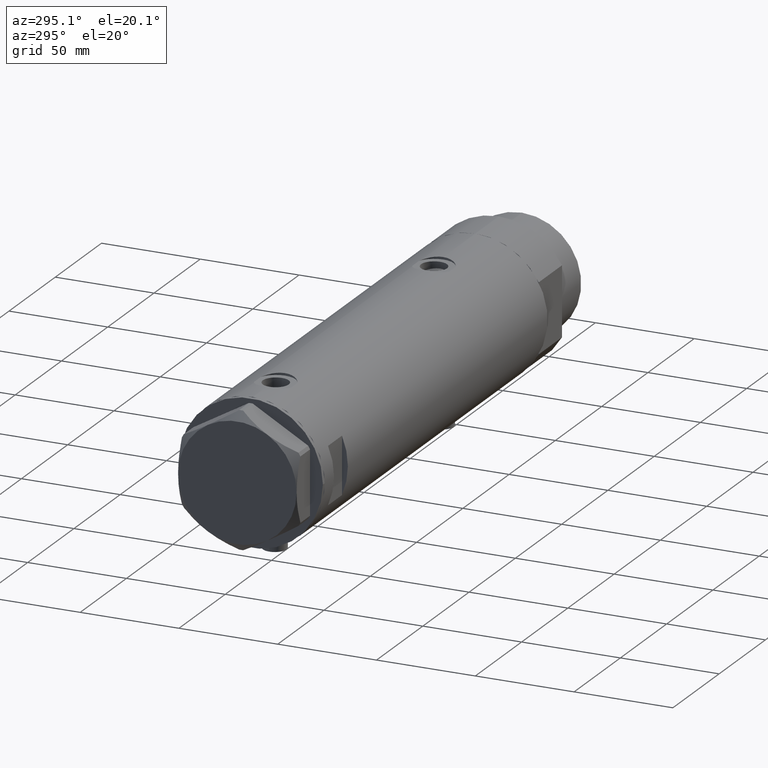
[diagram: clean part render]
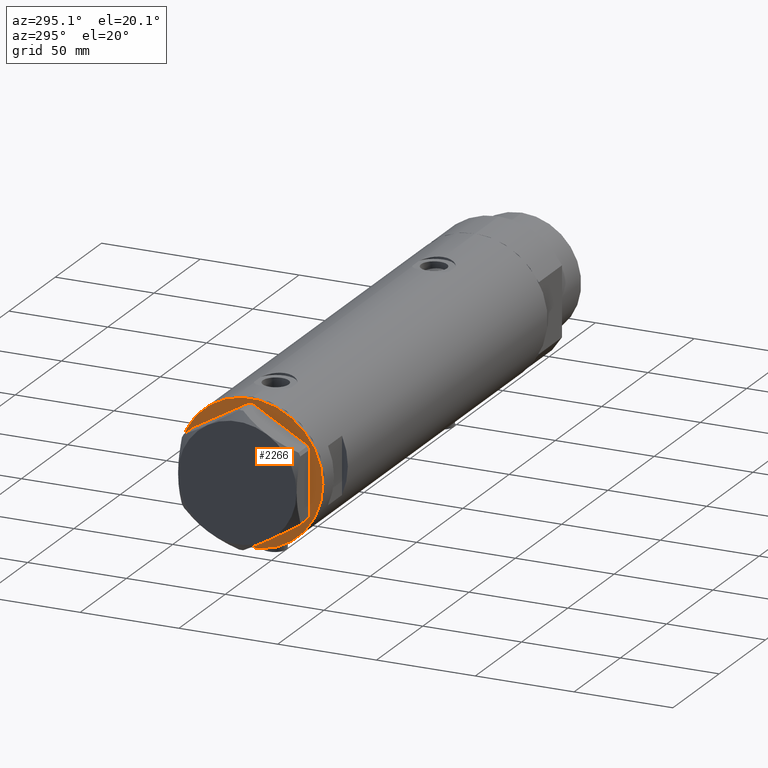
[diagram: same view with one face highlighted and labeled with its STEP entity id]
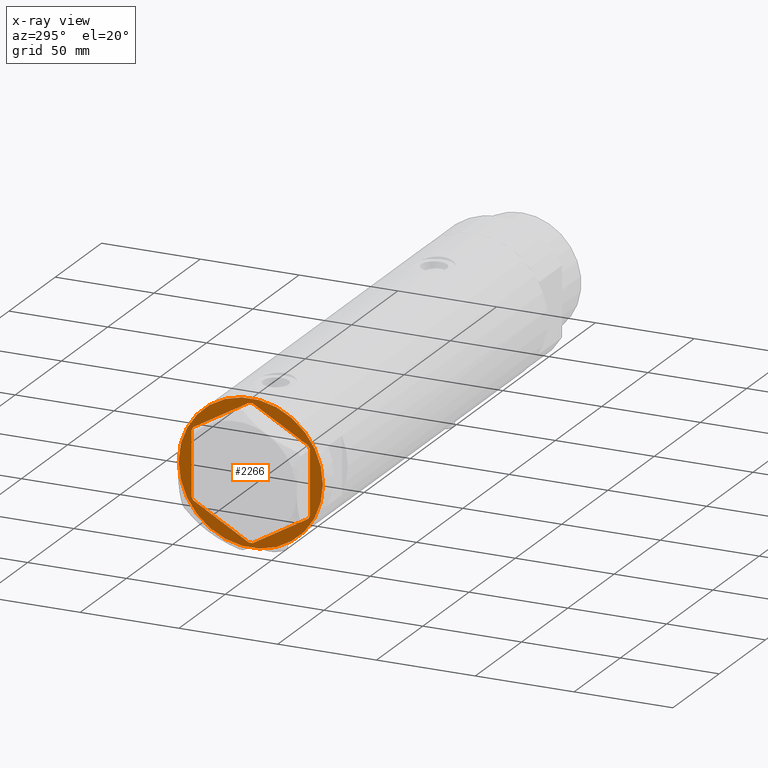
[diagram: x-ray of the same camera — body ghosted, the highlighted face saturated]
A machine part, auxiliary view. The second image highlights one B-rep face of the part: STEP entity #2266.
The next image is the same camera in x-ray: the body ghosted, the highlighted face saturated — about 0% of this face is hidden behind the body in this view.
In plain terms, the highlighted planar face has unit normal (1, 0, -0).
Its self-contained STEP definition (entity closure, byte-faithful):
#15 = EDGE_CURVE ( 'NONE', #161, #2370, #4081, .T. ) ;
#58 = CARTESIAN_POINT ( 'NONE',  ( 0.000000000000000000, 0.000000000000000000, 0.000000000000000000 ) ) ;
#87 = CARTESIAN_POINT ( 'NONE',  ( 0.9699484522385712904, 34.08101615137753981, 0.000000000000000000 ) ) ;
#146 = EDGE_CURVE ( 'NONE', #2773, #2370, #2030, .T. ) ;
#151 = LINE ( 'NONE', #3099, #3913 ) ;
#154 = ORIENTED_EDGE ( 'NONE', *, *, #1489, .F. ) ;
#161 = VERTEX_POINT ( 'NONE', #3091 ) ;
#179 = LINE ( 'NONE', #1996, #3847 ) ;
#270 = CARTESIAN_POINT ( 'NONE',  ( -30.00000000000000000, 16.20050807568875584, 0.000000000000000000 ) ) ;
#291 = VECTOR ( 'NONE', #1677, 1000.000000000000227 ) ;
#397 = DIRECTION ( 'NONE',  ( 0.000000000000000000, 0.000000000000000000, -1.000000000000000000 ) ) ;
#425 = CARTESIAN_POINT ( 'NONE',  ( -30.00000000000000000, -17.32050807568877460, 0.000000000000000000 ) ) ;
#437 = VERTEX_POINT ( 'NONE', #1898 ) ;
#446 = DIRECTION ( 'NONE',  ( 0.5000000000000019984, -0.8660254037844375974, -0.000000000000000000 ) ) ;
#506 = VERTEX_POINT ( 'NONE', #1925 ) ;
#526 = ORIENTED_EDGE ( 'NONE', *, *, #1098, .F. ) ;
#549 = EDGE_CURVE ( 'NONE', #4230, #1013, #1162, .T. ) ;
#559 = DIRECTION ( 'NONE',  ( 1.000000000000000000, -0.000000000000000000, -0.000000000000000000 ) ) ;
#569 = CARTESIAN_POINT ( 'NONE',  ( 29.03005154776139207, 17.88050807568879463, 0.000000000000000000 ) ) ;
#607 = ORIENTED_EDGE ( 'NONE', *, *, #869, .F. ) ;
#608 = ORIENTED_EDGE ( 'NONE', *, *, #2532, .F. ) ;
#703 = DIRECTION ( 'NONE',  ( 0.000000000000000000, -1.000000000000000000, 0.000000000000000000 ) ) ;
#781 = VECTOR ( 'NONE', #703, 1000.000000000000000 ) ;
#808 = VERTEX_POINT ( 'NONE', #3960 ) ;
#855 = PLANE ( 'NONE',  #4038 ) ;
#869 = EDGE_CURVE ( 'NONE', #2773, #808, #4642, .T. ) ;
#911 = CIRCLE ( 'NONE', #1912, 36.50000000000000000 ) ;
#995 = LINE ( 'NONE', #3203, #3967 ) ;
#1013 = VERTEX_POINT ( 'NONE', #3621 ) ;
#1070 = VERTEX_POINT ( 'NONE', #3642 ) ;
#1098 = EDGE_CURVE ( 'NONE', #2826, #1070, #911, .T. ) ;
#1162 = LINE ( 'NONE', #2642, #4315 ) ;
#1179 = EDGE_LOOP ( 'NONE', ( #526, #154 ) ) ;
#1204 = VECTOR ( 'NONE', #4033, 1000.000000000000227 ) ;
#1214 = ORIENTED_EDGE ( 'NONE', *, *, #15, .F. ) ;
#1224 = CARTESIAN_POINT ( 'NONE',  ( 0.000000000000000000, -34.08101615137752560, 0.000000000000000000 ) ) ;
#1258 = DIRECTION ( 'NONE',  ( -1.000000000000000000, 0.000000000000000000, 0.000000000000000000 ) ) ;
#1292 = VECTOR ( 'NONE', #3504, 1000.000000000000000 ) ;
#1296 = EDGE_CURVE ( 'NONE', #4230, #4122, #3025, .T. ) ;
#1315 = CARTESIAN_POINT ( 'NONE',  ( 0.000000000000000000, 34.08101615137753981, 0.000000000000000000 ) ) ;
#1370 = AXIS2_PLACEMENT_3D ( 'NONE', #1777, #4022, #4726 ) ;
#1393 = DIRECTION ( 'NONE',  ( -0.5000000000000012212, -0.8660254037844380415, -0.000000000000000000 ) ) ;
#1416 = EDGE_CURVE ( 'NONE', #4284, #4122, #1650, .T. ) ;
#1429 = ORIENTED_EDGE ( 'NONE', *, *, #2211, .F. ) ;
#1489 = EDGE_CURVE ( 'NONE', #1070, #2826, #2290, .T. ) ;
#1554 = DIRECTION ( 'NONE',  ( 0.000000000000000000, 0.000000000000000000, -1.000000000000000000 ) ) ;
#1650 = LINE ( 'NONE', #1315, #3607 ) ;
#1677 = DIRECTION ( 'NONE',  ( -0.8660254037844387076, 0.4999999999999997780, 0.000000000000000000 ) ) ;
#1757 = DIRECTION ( 'NONE',  ( 0.8660254037844389297, 0.4999999999999996114, 0.000000000000000000 ) ) ;
#1769 = EDGE_CURVE ( 'NONE', #437, #1013, #4628, .T. ) ;
#1777 = CARTESIAN_POINT ( 'NONE',  ( 0.000000000000000000, 0.000000000000000000, 0.000000000000000000 ) ) ;
#1781 = CARTESIAN_POINT ( 'NONE',  ( 29.51502577388068715, -17.04050807568881254, 0.000000000000000000 ) ) ;
#1878 = FACE_BOUND ( 'NONE', #4115, .T. ) ;
#1898 = CARTESIAN_POINT ( 'NONE',  ( 30.00000000000000355, -16.20050807568876294, 0.000000000000000000 ) ) ;
#1912 = AXIS2_PLACEMENT_3D ( 'NONE', #58, #1554, #1258 ) ;
#1925 = CARTESIAN_POINT ( 'NONE',  ( -30.00000000000000000, -16.20050807568876294, 0.000000000000000000 ) ) ;
#1996 = CARTESIAN_POINT ( 'NONE',  ( -29.51502577388069071, 17.04050807568879833, 0.000000000000000000 ) ) ;
#2024 = CARTESIAN_POINT ( 'NONE',  ( 0.9699484522385750651, -34.08101615137752560, 0.000000000000000000 ) ) ;
#2030 = LINE ( 'NONE', #1224, #1292 ) ;
#2035 = DIRECTION ( 'NONE',  ( -3.004629197474318063E-16, 1.000000000000000000, 0.000000000000000000 ) ) ;
#2037 = EDGE_CURVE ( 'NONE', #3502, #2043, #179, .T. ) ;
#2043 = VERTEX_POINT ( 'NONE', #3807 ) ;
#2211 = EDGE_CURVE ( 'NONE', #4284, #2043, #995, .T. ) ;
#2250 = ORIENTED_EDGE ( 'NONE', *, *, #146, .T. ) ;
#2266 = ADVANCED_FACE ( 'NONE', ( #1878, #4545 ), #855, .F. ) ;
#2290 = CIRCLE ( 'NONE', #1370, 36.50000000000000000 ) ;
#2307 = CARTESIAN_POINT ( 'NONE',  ( 29.99999999999999289, 17.32050807568878170, 0.000000000000000000 ) ) ;
#2370 = VERTEX_POINT ( 'NONE', #3170 ) ;
#2532 = EDGE_CURVE ( 'NONE', #3502, #506, #4030, .T. ) ;
#2642 = CARTESIAN_POINT ( 'NONE',  ( 29.51502577388065873, 17.04050807568883386, 0.000000000000000000 ) ) ;
#2652 = VECTOR ( 'NONE', #1393, 999.9999999999998863 ) ;
#2693 = DIRECTION ( 'NONE',  ( 0.5000000000000008882, 0.8660254037844381525, -0.000000000000000000 ) ) ;
#2719 = ORIENTED_EDGE ( 'NONE', *, *, #1769, .F. ) ;
#2726 = DIRECTION ( 'NONE',  ( -1.000000000000000000, 0.000000000000000000, -0.000000000000000000 ) ) ;
#2773 = VERTEX_POINT ( 'NONE', #2024 ) ;
#2820 = CARTESIAN_POINT ( 'NONE',  ( -5.841958412462644145E-15, -34.64101615137753498, 0.000000000000000000 ) ) ;
#2826 = VERTEX_POINT ( 'NONE', #3622 ) ;
#2950 = ORIENTED_EDGE ( 'NONE', *, *, #1416, .T. ) ;
#3025 = LINE ( 'NONE', #2307, #291 ) ;
#3038 = CARTESIAN_POINT ( 'NONE',  ( 0.000000000000000000, 0.000000000000000000, 0.000000000000000000 ) ) ;
#3091 = CARTESIAN_POINT ( 'NONE',  ( -29.03005154776141339, -17.88050807568878042, 0.000000000000000000 ) ) ;
#3097 = CARTESIAN_POINT ( 'NONE',  ( 30.00000000000000355, -17.32050807568877460, 0.000000000000000000 ) ) ;
#3099 = CARTESIAN_POINT ( 'NONE',  ( -29.51502577388068715, -17.04050807568881254, 0.000000000000000000 ) ) ;
#3170 = CARTESIAN_POINT ( 'NONE',  ( -0.9699484522385886098, -34.08101615137752560, 0.000000000000000000 ) ) ;
#3203 = CARTESIAN_POINT ( 'NONE',  ( 0.000000000000000000, 34.64101615137754209, 0.000000000000000000 ) ) ;
#3218 = DIRECTION ( 'NONE',  ( -0.5000000000000012212, 0.8660254037844380415, -0.000000000000000000 ) ) ;
#3224 = ORIENTED_EDGE ( 'NONE', *, *, #3686, .T. ) ;
#3228 = DIRECTION ( 'NONE',  ( -0.8660254037844387076, -0.4999999999999998335, 0.000000000000000000 ) ) ;
#3319 = ORIENTED_EDGE ( 'NONE', *, *, #1296, .F. ) ;
#3325 = CARTESIAN_POINT ( 'NONE',  ( -30.00000000000000000, 17.32050807568877460, 0.000000000000000000 ) ) ;
#3358 = ORIENTED_EDGE ( 'NONE', *, *, #4639, .T. ) ;
#3502 = VERTEX_POINT ( 'NONE', #270 ) ;
#3504 = DIRECTION ( 'NONE',  ( -1.000000000000000000, -0.000000000000000000, -0.000000000000000000 ) ) ;
#3607 = VECTOR ( 'NONE', #559, 1000.000000000000000 ) ;
#3621 = CARTESIAN_POINT ( 'NONE',  ( 29.99999999999999289, 16.20050807568875584, 0.000000000000000000 ) ) ;
#3622 = CARTESIAN_POINT ( 'NONE',  ( 36.50000000000000000, 0.000000000000000000, 0.000000000000000000 ) ) ;
#3642 = CARTESIAN_POINT ( 'NONE',  ( -36.50000000000000000, 4.469960816887838430E-15, 0.000000000000000000 ) ) ;
#3686 = EDGE_CURVE ( 'NONE', #161, #506, #151, .T. ) ;
#3764 = ORIENTED_EDGE ( 'NONE', *, *, #549, .T. ) ;
#3807 = CARTESIAN_POINT ( 'NONE',  ( -29.03005154776141339, 17.88050807568878042, 0.000000000000000000 ) ) ;
#3847 = VECTOR ( 'NONE', #2693, 1000.000000000000000 ) ;
#3913 = VECTOR ( 'NONE', #3218, 999.9999999999998863 ) ;
#3960 = CARTESIAN_POINT ( 'NONE',  ( 29.03005154776141694, -17.88050807568878042, 0.000000000000000000 ) ) ;
#3967 = VECTOR ( 'NONE', #3228, 1000.000000000000114 ) ;
#4022 = DIRECTION ( 'NONE',  ( 0.000000000000000000, 0.000000000000000000, -1.000000000000000000 ) ) ;
#4030 = LINE ( 'NONE', #3325, #781 ) ;
#4033 = DIRECTION ( 'NONE',  ( 0.8660254037844387076, -0.4999999999999997780, 0.000000000000000000 ) ) ;
#4038 = AXIS2_PLACEMENT_3D ( 'NONE', #3038, #397, #2726 ) ;
#4044 = LINE ( 'NONE', #1781, #2652 ) ;
#4081 = LINE ( 'NONE', #425, #1204 ) ;
#4115 = EDGE_LOOP ( 'NONE', ( #3319, #3764, #2719, #3358, #607, #2250, #1214, #3224, #608, #4188, #1429, #2950 ) ) ;
#4122 = VERTEX_POINT ( 'NONE', #87 ) ;
#4188 = ORIENTED_EDGE ( 'NONE', *, *, #2037, .T. ) ;
#4230 = VERTEX_POINT ( 'NONE', #569 ) ;
#4284 = VERTEX_POINT ( 'NONE', #4410 ) ;
#4315 = VECTOR ( 'NONE', #446, 999.9999999999998863 ) ;
#4410 = CARTESIAN_POINT ( 'NONE',  ( -0.9699484522385684038, 34.08101615137753981, 0.000000000000000000 ) ) ;
#4545 = FACE_OUTER_BOUND ( 'NONE', #1179, .T. ) ;
#4628 = LINE ( 'NONE', #3097, #4771 ) ;
#4639 = EDGE_CURVE ( 'NONE', #437, #808, #4044, .T. ) ;
#4642 = LINE ( 'NONE', #2820, #4709 ) ;
#4709 = VECTOR ( 'NONE', #1757, 1000.000000000000000 ) ;
#4726 = DIRECTION ( 'NONE',  ( -1.000000000000000000, 0.000000000000000000, 0.000000000000000000 ) ) ;
#4771 = VECTOR ( 'NONE', #2035, 1000.000000000000000 ) ;